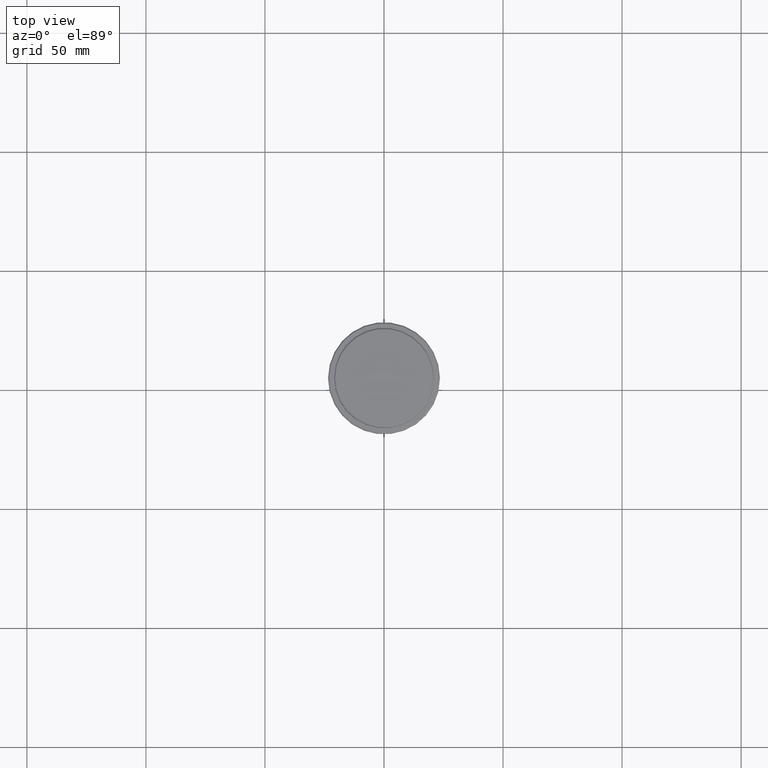
[diagram: clean part render]
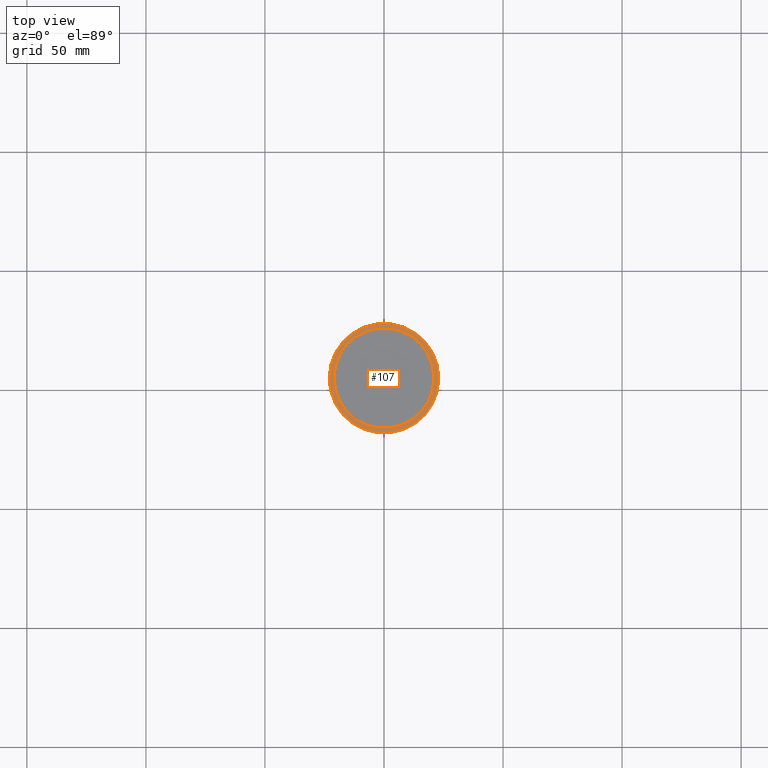
[diagram: same view with one face highlighted and labeled with its STEP entity id]
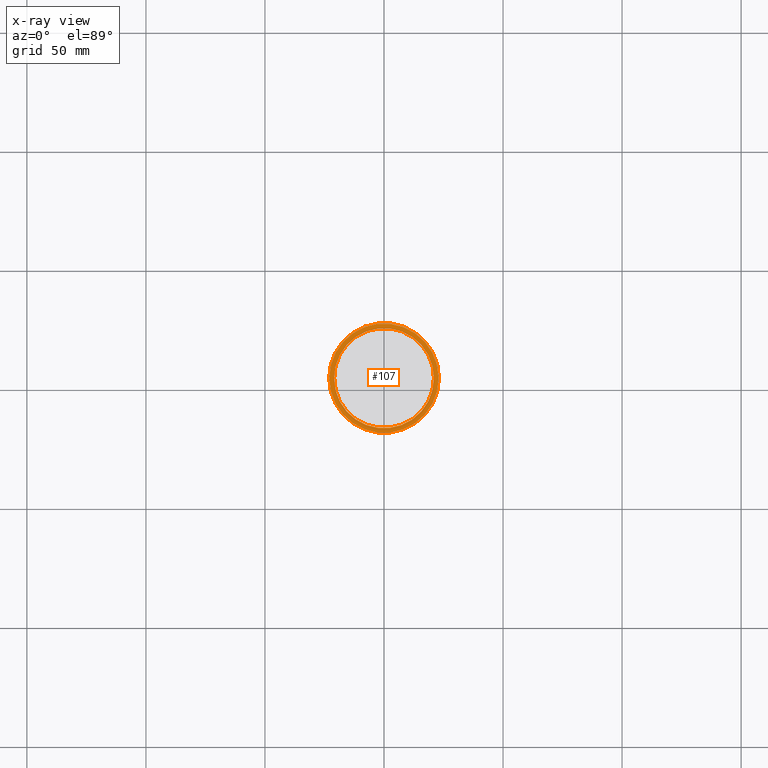
[diagram: x-ray of the same camera — body ghosted, the highlighted face saturated]
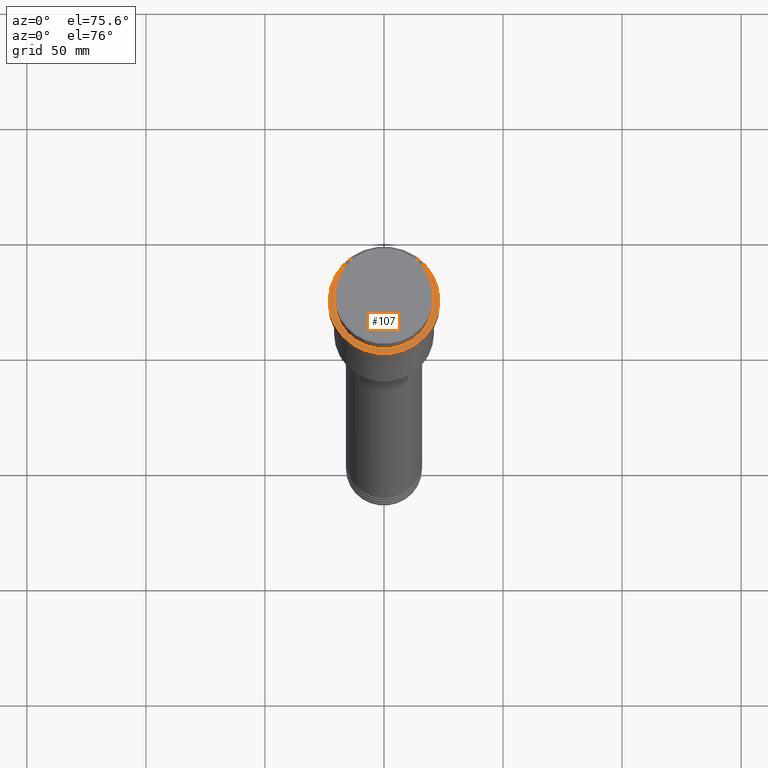
[diagram: same view with one face highlighted and labeled with its STEP entity id]
A machine part, top view. The second image highlights one B-rep face of the part: STEP entity #107.
The next image is the same camera in x-ray: the body ghosted, the highlighted face saturated — about 0% of this face is hidden behind the body in this view.
A second angle (auxiliary view) of the same face is appended — the face is thin or edge-on in the first view.
In plain terms, the highlighted planar face has unit normal (0, -0, 1).
Its self-contained STEP definition (entity closure, byte-faithful):
#9 = ORIENTED_EDGE ( 'NONE', *, *, #982, .T. ) ;
#12 = DIRECTION ( 'NONE',  ( 1.000000000000000000, 0.000000000000000000, 0.000000000000000000 ) ) ;
#18 = AXIS2_PLACEMENT_3D ( 'NONE', #276, #286, #826 ) ;
#70 = CIRCLE ( 'NONE', #1163, 20.99999999999999289 ) ;
#84 = DIRECTION ( 'NONE',  ( 0.000000000000000000, 0.000000000000000000, -1.000000000000000000 ) ) ;
#107 = ADVANCED_FACE ( 'NONE', ( #1330, #265 ), #987, .T. ) ;
#119 = CARTESIAN_POINT ( 'NONE',  ( 0.000000000000000000, 0.000000000000000000, -9.000000000000001776 ) ) ;
#132 = EDGE_CURVE ( 'NONE', #1211, #1350, #70, .T. ) ;
#233 = VERTEX_POINT ( 'NONE', #707 ) ;
#265 = FACE_BOUND ( 'NONE', #558, .T. ) ;
#276 = CARTESIAN_POINT ( 'NONE',  ( 0.000000000000000000, 0.000000000000000000, -9.000000000000001776 ) ) ;
#286 = DIRECTION ( 'NONE',  ( -0.000000000000000000, -0.000000000000000000, 1.000000000000000000 ) ) ;
#345 = CARTESIAN_POINT ( 'NONE',  ( 0.000000000000000000, 20.49999999999999645, -9.000000000000001776 ) ) ;
#348 = CIRCLE ( 'NONE', #793, 23.00000000000005329 ) ;
#357 = DIRECTION ( 'NONE',  ( 1.000000000000000000, 0.000000000000000000, 0.000000000000000000 ) ) ;
#407 = CARTESIAN_POINT ( 'NONE',  ( 20.99999999999999289, 0.000000000000000000, -9.000000000000001776 ) ) ;
#480 = VERTEX_POINT ( 'NONE', #988 ) ;
#558 = EDGE_LOOP ( 'NONE', ( #986, #1304 ) ) ;
#560 = DIRECTION ( 'NONE',  ( 0.000000000000000000, -0.000000000000000000, 1.000000000000000000 ) ) ;
#572 = AXIS2_PLACEMENT_3D ( 'NONE', #345, #560, #993 ) ;
#638 = DIRECTION ( 'NONE',  ( 1.000000000000000000, 0.000000000000000000, 0.000000000000000000 ) ) ;
#707 = CARTESIAN_POINT ( 'NONE',  ( 23.00000000000005329, 2.847303808017599689E-15, -9.000000000000001776 ) ) ;
#756 = CARTESIAN_POINT ( 'NONE',  ( -20.99999999999999289, 2.571758278209440872E-15, -9.000000000000001776 ) ) ;
#793 = AXIS2_PLACEMENT_3D ( 'NONE', #1011, #805, #357 ) ;
#805 = DIRECTION ( 'NONE',  ( -0.000000000000000000, -0.000000000000000000, 1.000000000000000000 ) ) ;
#826 = DIRECTION ( 'NONE',  ( 1.000000000000000000, 0.000000000000000000, 0.000000000000000000 ) ) ;
#833 = ORIENTED_EDGE ( 'NONE', *, *, #1133, .T. ) ;
#859 = CIRCLE ( 'NONE', #1160, 20.99999999999999289 ) ;
#871 = CARTESIAN_POINT ( 'NONE',  ( 0.000000000000000000, 0.000000000000000000, -9.000000000000001776 ) ) ;
#982 = EDGE_CURVE ( 'NONE', #480, #233, #348, .T. ) ;
#986 = ORIENTED_EDGE ( 'NONE', *, *, #132, .T. ) ;
#987 = PLANE ( 'NONE',  #572 ) ;
#988 = CARTESIAN_POINT ( 'NONE',  ( -23.00000000000005329, 0.000000000000000000, -9.000000000000001776 ) ) ;
#993 = DIRECTION ( 'NONE',  ( 1.000000000000000000, 0.000000000000000000, 0.000000000000000000 ) ) ;
#1011 = CARTESIAN_POINT ( 'NONE',  ( 0.000000000000000000, 0.000000000000000000, -9.000000000000001776 ) ) ;
#1082 = EDGE_LOOP ( 'NONE', ( #9, #833 ) ) ;
#1133 = EDGE_CURVE ( 'NONE', #233, #480, #1182, .T. ) ;
#1160 = AXIS2_PLACEMENT_3D ( 'NONE', #871, #84, #638 ) ;
#1163 = AXIS2_PLACEMENT_3D ( 'NONE', #119, #1205, #12 ) ;
#1182 = CIRCLE ( 'NONE', #18, 23.00000000000005329 ) ;
#1205 = DIRECTION ( 'NONE',  ( 0.000000000000000000, 0.000000000000000000, -1.000000000000000000 ) ) ;
#1211 = VERTEX_POINT ( 'NONE', #407 ) ;
#1298 = EDGE_CURVE ( 'NONE', #1350, #1211, #859, .T. ) ;
#1304 = ORIENTED_EDGE ( 'NONE', *, *, #1298, .T. ) ;
#1330 = FACE_OUTER_BOUND ( 'NONE', #1082, .T. ) ;
#1350 = VERTEX_POINT ( 'NONE', #756 ) ;